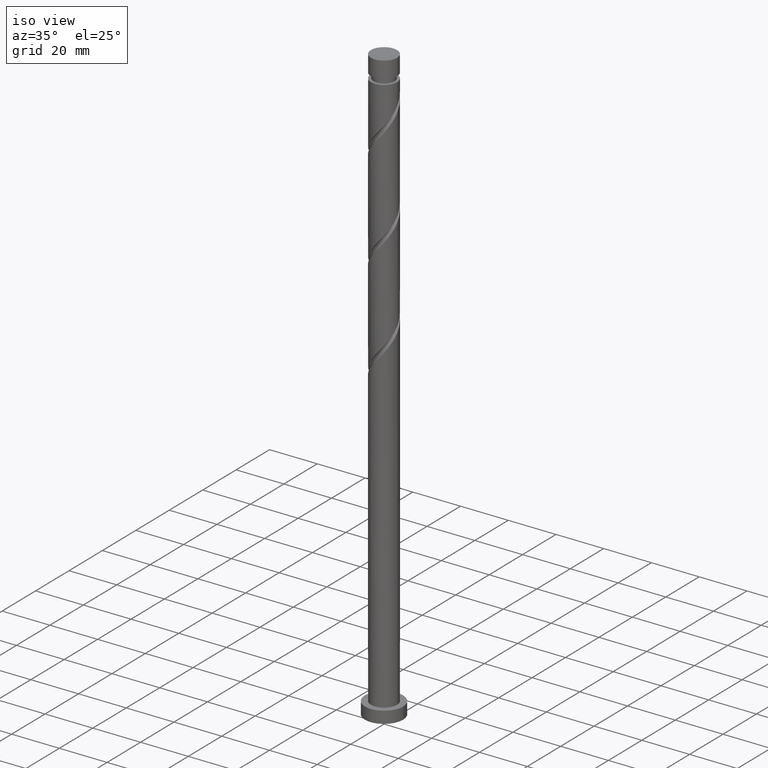
[diagram: clean part render]
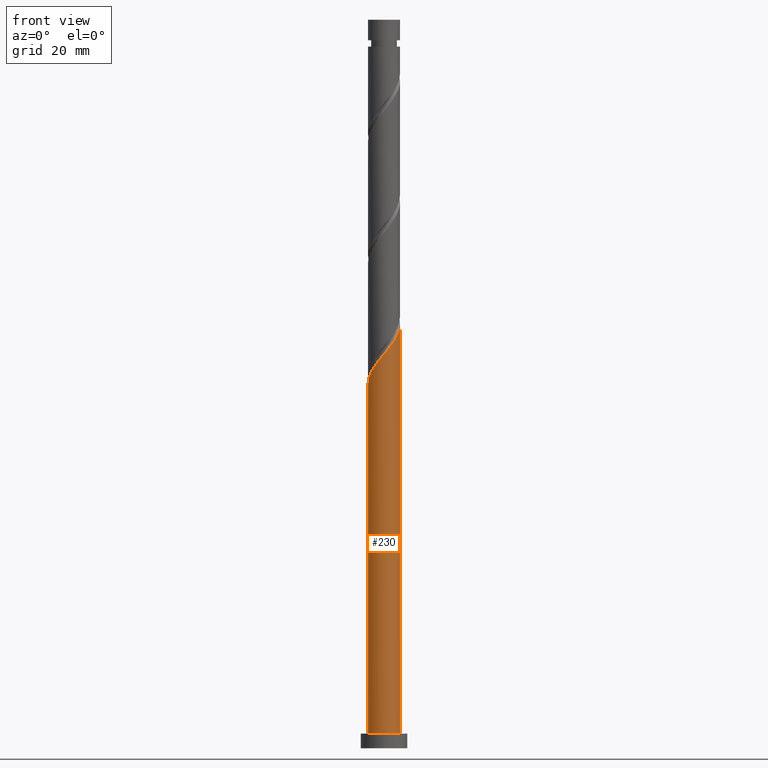
[diagram: tour spotlight — one face highlighted and labeled with its STEP entity id]
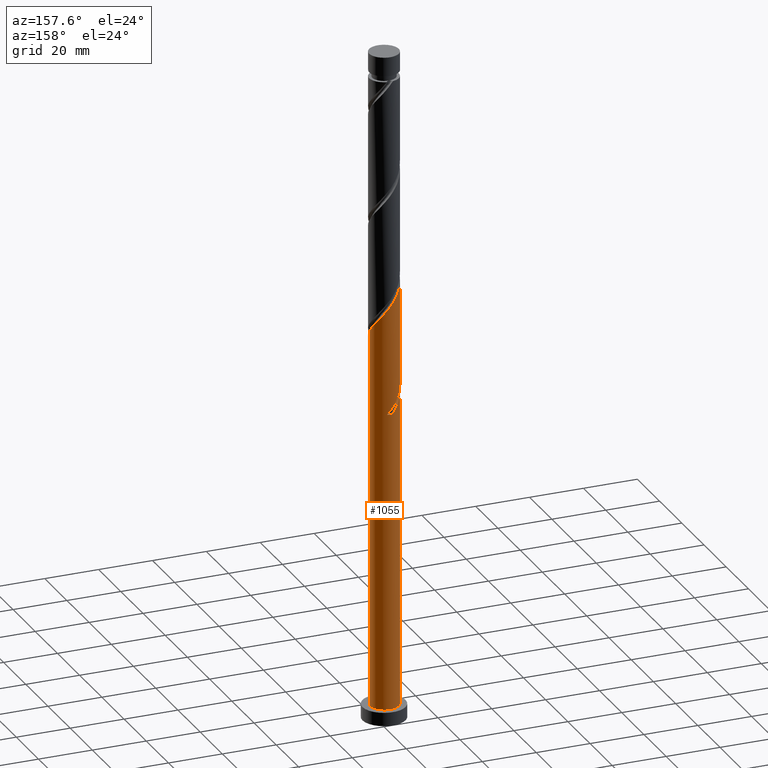
[diagram: tour spotlight — one face highlighted and labeled with its STEP entity id]
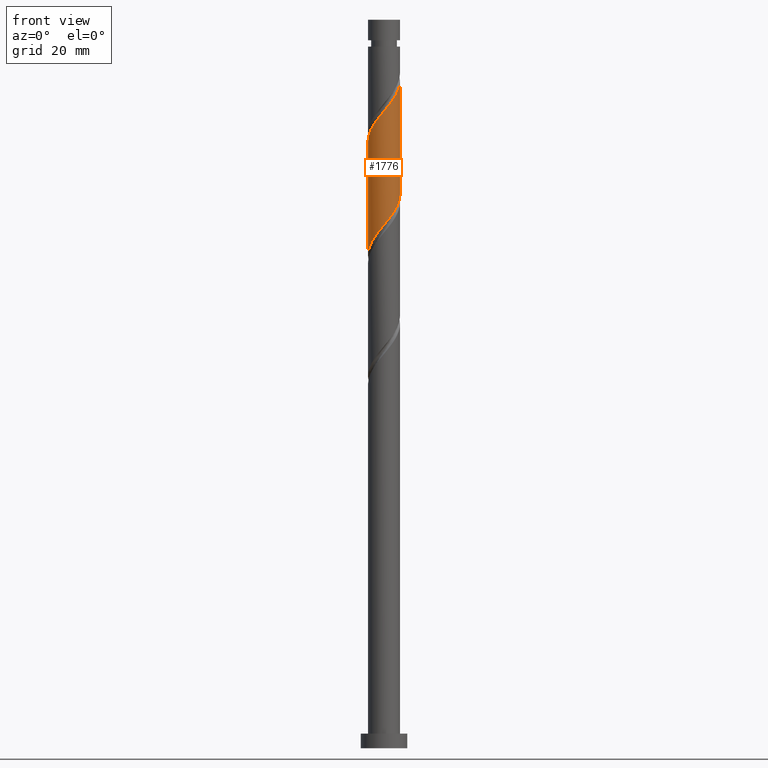
[diagram: tour spotlight — one face highlighted and labeled with its STEP entity id]
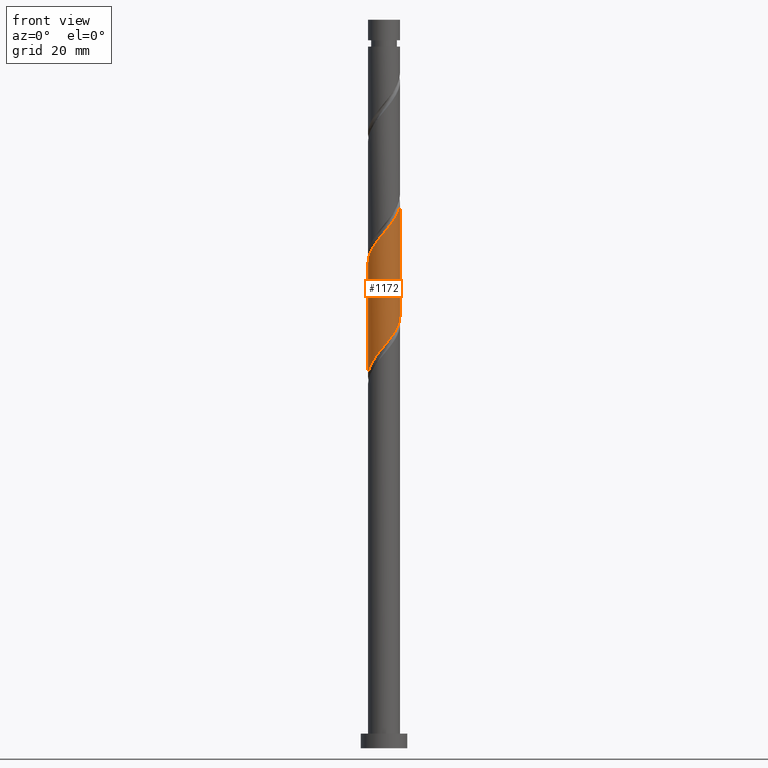
[diagram: tour spotlight — one face highlighted and labeled with its STEP entity id]
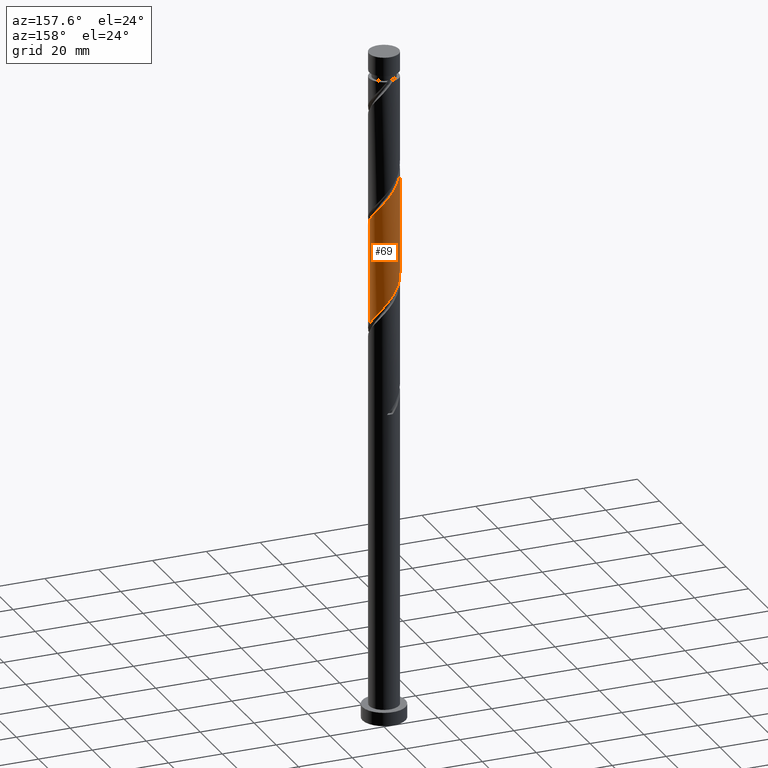
[diagram: tour spotlight — one face highlighted and labeled with its STEP entity id]
A machine part: a face-by-face anatomy tour. The part has 21 B-rep faces; the first image is the clean iso view, then the 5 largest visible faces are spotlighted one at a time (largest first), each with its STEP entity span.

Face 1 — front view, entity #230. In plain terms, the highlighted cylindrical surface (edge-blend (fillet) strip) has radius 5.5 mm, axis along (-0, -0, -1).
Definition (entity closure, byte-faithful):
#52 = CARTESIAN_POINT ( 'NONE',  ( -5.482626562209559573, -0.4368134376988127565, 125.4066184522399681 ) ) ;
#68 = CARTESIAN_POINT ( 'NONE',  ( -0.2272290289595070012, -5.495304083342267276, 135.0220030676246097 ) ) ;
#77 = CARTESIAN_POINT ( 'NONE',  ( -4.651627399556062414, -2.934682697618155256, 128.6117466573682009 ) ) ;
#150 = CYLINDRICAL_SURFACE ( 'NONE', #1026, 5.500000000000000000 ) ;
#183 = CARTESIAN_POINT ( 'NONE',  ( 5.057622052273533342, -2.161124516624742142, 143.0348235804450781 ) ) ;
#230 = ADVANCED_FACE ( 'NONE', ( #992 ), #150, .T. ) ;
#295 = CIRCLE ( 'NONE', #1399, 5.500000000000000000 ) ;
#316 = EDGE_CURVE ( 'NONE', #588, #352, #468, .T. ) ;
#318 = CARTESIAN_POINT ( 'NONE',  ( 2.956236993735469110, -4.685792099705358815, 139.0284133240348581 ) ) ;
#327 = CARTESIAN_POINT ( 'NONE',  ( -5.500000000000005329, -0.2187522168522292587, 125.1441495432631399 ) ) ;
#352 = VERTEX_POINT ( 'NONE', #1162 ) ;
#402 = VECTOR ( 'NONE', #1483, 1000.000000000000000 ) ;
#468 = LINE ( 'NONE', #906, #402 ) ;
#584 = EDGE_CURVE ( 'NONE', #352, #1328, #295, .T. ) ;
#588 = VERTEX_POINT ( 'NONE', #1747 ) ;
#592 = DIRECTION ( 'NONE',  ( 1.000000000000000000, 0.000000000000000000, 0.000000000000000000 ) ) ;
#600 = DIRECTION ( 'NONE',  ( -1.000000000000000000, 0.000000000000000000, 0.000000000000000000 ) ) ;
#618 = CARTESIAN_POINT ( 'NONE',  ( -1.535738513517082904, -5.281241067978283077, 133.4194389650605501 ) ) ;
#623 = EDGE_LOOP ( 'NONE', ( #786, #1721, #1598, #1694 ) ) ;
#628 = CARTESIAN_POINT ( 'NONE',  ( 3.473977281114748017, -4.263974888563327958, 139.8296953753169021 ) ) ;
#653 = VECTOR ( 'NONE', #836, 1000.000000000000000 ) ;
#757 = CARTESIAN_POINT ( 'NONE',  ( -0.8944797491683107449, -5.467713484000335633, 134.2207210163425941 ) ) ;
#766 = CARTESIAN_POINT ( 'NONE',  ( -3.332995637836974279, -4.425734384590989556, 131.0155928112143613 ) ) ;
#782 = CARTESIAN_POINT ( 'NONE',  ( -5.429587808306036045, -1.102524828149342717, 126.2079005035219978 ) ) ;
#786 = ORIENTED_EDGE ( 'NONE', *, *, #1551, .F. ) ;
#818 = LINE ( 'NONE', #978, #653 ) ;
#836 = DIRECTION ( 'NONE',  ( -0.000000000000000000, -0.000000000000000000, -1.000000000000000000 ) ) ;
#885 = CARTESIAN_POINT ( 'NONE',  ( -2.176997277865855285, -5.094768651956234962, 132.6181569137784777 ) ) ;
#889 = DIRECTION ( 'NONE',  ( -0.000000000000000000, -0.000000000000000000, -1.000000000000000000 ) ) ;
#894 = CARTESIAN_POINT ( 'NONE',  ( 1.094486180817283882, -5.390000000000005898, 136.6245671701887261 ) ) ;
#904 = CARTESIAN_POINT ( 'NONE',  ( 5.427847696592720261, -0.8879579847003837845, 144.6373876830092513 ) ) ;
#906 = CARTESIAN_POINT ( 'NONE',  ( -5.500000000000000000, 0.000000000000000000, 250.0000000000000000 ) ) ;
#912 = CARTESIAN_POINT ( 'NONE',  ( -5.218775100567474290, -1.736198850851196518, 127.0091825548040845 ) ) ;
#921 = CARTESIAN_POINT ( 'NONE',  ( -4.295292406283213182, -3.499492521683258861, 129.4130287086503017 ) ) ;
#978 = CARTESIAN_POINT ( 'NONE',  ( 5.500000000000000000, 6.735557395310442023E-16, 250.0000000000000000 ) ) ;
#992 = FACE_OUTER_BOUND ( 'NONE', #623, .T. ) ;
#1025 = CARTESIAN_POINT ( 'NONE',  ( 2.352593832060369650, -4.971448708510584957, 138.2271312727528141 ) ) ;
#1026 = AXIS2_PLACEMENT_3D ( 'NONE', #1745, #889, #600 ) ;
#1045 = CARTESIAN_POINT ( 'NONE',  ( -5.007962392828913423, -2.369872873553052983, 127.8104646060861143 ) ) ;
#1162 = CARTESIAN_POINT ( 'NONE',  ( -5.500000000000000000, 0.000000000000000000, 5.000000000000000000 ) ) ;
#1181 = CARTESIAN_POINT ( 'NONE',  ( 4.393465797984365651, -3.308694347010867176, 141.4322594778810185 ) ) ;
#1190 = CARTESIAN_POINT ( 'NONE',  ( 0.4400216912492971311, -5.522894682684198031, 135.8232851189066821 ) ) ;
#1198 = CARTESIAN_POINT ( 'NONE',  ( -3.814144022060092620, -3.962613453137125319, 130.2143107599322889 ) ) ;
#1228 =( BOUNDED_CURVE ( )  B_SPLINE_CURVE ( 2, ( #1331, #327, #52, #782, #912, #1045, #77, #921, #1198, #766, #1617, #885, #618, #757, #68, #1190, #894, #1467, #1025, #318, #628, #1499, #1181, #1458, #183, #1355, #904, #1595, #1633 ),
 .UNSPECIFIED., .F., .T. ) 
 B_SPLINE_CURVE_WITH_KNOTS ( ( 3, 2, 2, 2, 2, 2, 2, 2, 2, 2, 2, 2, 2, 2, 3 ),
 ( 0.05452716259738336901, 0.05769230769230770939, 0.06730769230769229061, 0.07692307692307687184, 0.08653846153846156408, 0.09615384615384614531, 0.1057692307692307265, 0.1153846153846154188, 0.1250000000000000000, 0.1346153846153845812, 0.1442307692307692735, 0.1538461538461538547, 0.1634615384615384359, 0.1730769230769231282, 0.1795271625973833829 ),
 .UNSPECIFIED. ) 
 CURVE ( )  GEOMETRIC_REPRESENTATION_ITEM ( )  RATIONAL_B_SPLINE_CURVE ( ( 0.9061636035682822943, 0.9069090390690708325, 0.9090909090909273793, 0.9024626128164308092, 0.9090909090909273793, 0.9024626128164308092, 0.9090909090909273793, 0.9024626128164308092, 0.9090909090909273793, 0.9024626128164308092, 0.9090909090909273793, 0.9024626128164308092, 0.9090909090909273793, 0.9024626128164308092, 0.9090909090909273793, 0.9024626128164308092, 0.9090909090909273793, 0.9024626128164308092, 0.9090909090909273793, 0.9024626128164308092, 0.9090909090909273793, 0.9024626128164308092, 0.9090909090909273793, 0.9024626128164308092, 0.9090909090909273793, 0.9024626128164308092, 0.9090909090909273793, 0.9046444828382873560, 0.9061636035682820722 ) ) 
 REPRESENTATION_ITEM ( '' )  );
#1328 = VERTEX_POINT ( 'NONE', #1836 ) ;
#1331 = CARTESIAN_POINT ( 'NONE',  ( -5.500000000000005329, -2.811716444257900512E-15, 124.8799786276301660 ) ) ;
#1355 = CARTESIAN_POINT ( 'NONE',  ( 5.320030077072358310, -1.547018016649052807, 143.8361056317271220 ) ) ;
#1399 = AXIS2_PLACEMENT_3D ( 'NONE', #1731, #1586, #592 ) ;
#1458 = CARTESIAN_POINT ( 'NONE',  ( 4.795214027474707486, -2.775231016600435030, 142.2335415291630056 ) ) ;
#1467 = CARTESIAN_POINT ( 'NONE',  ( 1.748950670385268413, -5.257105317315811988, 137.4258492214707132 ) ) ;
#1483 = DIRECTION ( 'NONE',  ( -0.000000000000000000, -0.000000000000000000, -1.000000000000000000 ) ) ;
#1499 = CARTESIAN_POINT ( 'NONE',  ( 3.991717568494025148, -3.842157677421299766, 140.6309774265989745 ) ) ;
#1551 = EDGE_CURVE ( 'NONE', #1824, #1328, #818, .T. ) ;
#1586 = DIRECTION ( 'NONE',  ( 0.000000000000000000, 0.000000000000000000, 1.000000000000000000 ) ) ;
#1595 = CARTESIAN_POINT ( 'NONE',  ( 5.500000000000006217, -0.4469104119537462561, 145.1736112236151541 ) ) ;
#1598 = ORIENTED_EDGE ( 'NONE', *, *, #316, .T. ) ;
#1617 = CARTESIAN_POINT ( 'NONE',  ( -2.754996457851414782, -4.760251518273612703, 131.8168748624964053 ) ) ;
#1633 = CARTESIAN_POINT ( 'NONE',  ( 5.500000000000005329, 2.034007640526991549E-15, 145.7133119609635230 ) ) ;
#1679 = CARTESIAN_POINT ( 'NONE',  ( 5.500000000000005329, 2.034007640526991549E-15, 145.7133119609635230 ) ) ;
#1692 = EDGE_CURVE ( 'NONE', #588, #1824, #1228, .T. ) ;
#1694 = ORIENTED_EDGE ( 'NONE', *, *, #584, .T. ) ;
#1721 = ORIENTED_EDGE ( 'NONE', *, *, #1692, .F. ) ;
#1731 = CARTESIAN_POINT ( 'NONE',  ( 0.000000000000000000, 0.000000000000000000, 5.000000000000000000 ) ) ;
#1745 = CARTESIAN_POINT ( 'NONE',  ( 0.000000000000000000, 0.000000000000000000, 250.0000000000000000 ) ) ;
#1747 = CARTESIAN_POINT ( 'NONE',  ( -5.500000000000005329, -2.811716444257900118E-15, 124.8799786276301660 ) ) ;
#1824 = VERTEX_POINT ( 'NONE', #1679 ) ;
#1836 = CARTESIAN_POINT ( 'NONE',  ( 5.500000000000000000, 6.735557395310442023E-16, 5.000000000000000000 ) ) ;

Face 2 — auxiliary view, entity #1055. In plain terms, the highlighted cylindrical surface (edge-blend (fillet) strip) has radius 5.5 mm, axis along (-0, -0, -1).
Definition (entity closure, byte-faithful):
#81 = VERTEX_POINT ( 'NONE', #1351 ) ;
#95 = CARTESIAN_POINT ( 'NONE',  ( -4.295292406283205189, 3.499492521683255752, 123.0027722983938503 ) ) ;
#121 = DIRECTION ( 'NONE',  ( -0.000000000000000000, -0.000000000000000000, -1.000000000000000000 ) ) ;
#122 = CARTESIAN_POINT ( 'NONE',  ( 5.429587808306036045, 1.102524828149341829, 147.0412338368553833 ) ) ;
#144 = EDGE_LOOP ( 'NONE', ( #1032, #1523, #220, #645, #1206, #1048, #1755, #1548 ) ) ;
#169 = CIRCLE ( 'NONE', #1211, 5.500000000000000000 ) ;
#218 = CARTESIAN_POINT ( 'NONE',  ( -5.500000000000000000, 4.845724084784922038E-15, 127.5358223794139150 ) ) ;
#220 = ORIENTED_EDGE ( 'NONE', *, *, #262, .T. ) ;
#228 = CARTESIAN_POINT ( 'NONE',  ( 4.651627399556062414, 2.934682697618155700, 149.4450799907015153 ) ) ;
#254 = CARTESIAN_POINT ( 'NONE',  ( 0.000000000000000000, 0.000000000000000000, 250.0000000000000000 ) ) ;
#262 = EDGE_CURVE ( 'NONE', #1328, #352, #169, .T. ) ;
#283 = EDGE_CURVE ( 'NONE', #1465, #1122, #770, .T. ) ;
#305 = CARTESIAN_POINT ( 'NONE',  ( -4.795214027474709262, 2.775231016600434142, 121.4002081958297481 ) ) ;
#314 = CARTESIAN_POINT ( 'NONE',  ( -5.499999999999999112, 4.845724084784922038E-15, 127.5358223794139150 ) ) ;
#316 = EDGE_CURVE ( 'NONE', #588, #352, #468, .T. ) ;
#321 = CARTESIAN_POINT ( 'NONE',  ( 0.000000000000000000, 0.000000000000000000, 115.7912338368554117 ) ) ;
#352 = VERTEX_POINT ( 'NONE', #1162 ) ;
#368 = CARTESIAN_POINT ( 'NONE',  ( -1.094486180817283216, 5.390000000000005898, 115.7912338368553833 ) ) ;
#370 = CARTESIAN_POINT ( 'NONE',  ( -5.482626562209551579, 0.4368134376988147549, 127.0091825548040845 ) ) ;
#373 = CARTESIAN_POINT ( 'NONE',  ( 2.176997277865856617, 5.094768651956234962, 153.4514902471117637 ) ) ;
#382 = CARTESIAN_POINT ( 'NONE',  ( -5.320030077072360086, 1.547018016649049255, 164.6694389650605217 ) ) ;
#402 = VECTOR ( 'NONE', #1483, 1000.000000000000000 ) ;
#422 = CARTESIAN_POINT ( 'NONE',  ( 0.4400216912492997956, 5.522894682684190926, 116.5925158881374415 ) ) ;
#439 = CARTESIAN_POINT ( 'NONE',  ( -4.393465797984366539, 3.308694347010867176, 120.5989261445477041 ) ) ;
#453 = CARTESIAN_POINT ( 'NONE',  ( -5.500000000000000000, 0.000000000000000000, 250.0000000000000000 ) ) ;
#468 = LINE ( 'NONE', #906, #402 ) ;
#503 = CARTESIAN_POINT ( 'NONE',  ( 3.332995637836976055, 4.425734384590986892, 151.8489261445477325 ) ) ;
#542 = CARTESIAN_POINT ( 'NONE',  ( 1.535738513517085790, 5.281241067978283077, 154.2527722983937792 ) ) ;
#582 =( BOUNDED_CURVE ( )  B_SPLINE_CURVE ( 2, ( #965, #1002, #1012, #1729, #1300, #1453, #439, #305, #873, #1444, #743, #1308, #1737 ),
 .UNSPECIFIED., .F., .T. ) 
 B_SPLINE_CURVE_WITH_KNOTS ( ( 3, 2, 2, 2, 2, 2, 3 ),
 ( 0.000000000000000000, 0.009615384615384581224, 0.01923076923076927347, 0.02884615384615385469, 0.03846153846153843592, 0.04807692307692312816, 0.05452716259738337595 ),
 .UNSPECIFIED. ) 
 CURVE ( )  GEOMETRIC_REPRESENTATION_ITEM ( )  RATIONAL_B_SPLINE_CURVE ( ( 0.9090909090909273793, 0.9024626128164308092, 0.9090909090909273793, 0.9024626128164308092, 0.9090909090909273793, 0.9024626128164308092, 0.9090909090909273793, 0.9024626128164308092, 0.9090909090909273793, 0.9024626128164308092, 0.9090909090909273793, 0.9046444828382873560, 0.9061636035682822943 ) ) 
 REPRESENTATION_ITEM ( '' )  );
#588 = VERTEX_POINT ( 'NONE', #1747 ) ;
#590 = AXIS2_PLACEMENT_3D ( 'NONE', #254, #121, #1016 ) ;
#645 = ORIENTED_EDGE ( 'NONE', *, *, #316, .F. ) ;
#653 = VECTOR ( 'NONE', #836, 1000.000000000000000 ) ;
#661 = CARTESIAN_POINT ( 'NONE',  ( -3.814144022060085959, 3.962613453137121766, 122.2014902471118063 ) ) ;
#663 = CARTESIAN_POINT ( 'NONE',  ( 0.2272290289595099988, 5.495304083342267276, 155.8553364009579525 ) ) ;
#671 = CARTESIAN_POINT ( 'NONE',  ( 4.295292406283214071, 3.499492521683256641, 150.2463620419836445 ) ) ;
#676 = CARTESIAN_POINT ( 'NONE',  ( 1.094486180817285215, 5.389999999999998792, 115.7912338368553975 ) ) ;
#732 =( BOUNDED_CURVE ( )  B_SPLINE_CURVE ( 2, ( #1094, #816, #1084, #122, #1383, #1216, #228, #671, #1783, #503, #1115, #373, #542, #1663, #663, #832, #1790, #1107, #1226, #951, #1374, #1073, #1686, #823, #1253, #382, #798, #939, #1817 ),
 .UNSPECIFIED., .F., .T. ) 
 B_SPLINE_CURVE_WITH_KNOTS ( ( 3, 2, 2, 2, 2, 2, 2, 2, 2, 2, 2, 2, 2, 2, 3 ),
 ( 0.1795271625973833829, 0.1826923076923077094, 0.1923076923076922906, 0.2019230769230768718, 0.2115384615384615641, 0.2211538461538461453, 0.2307692307692307265, 0.2403846153846154188, 0.2500000000000000000, 0.2596153846153845812, 0.2692307692307692735, 0.2788461538461538547, 0.2884615384615384359, 0.2980769230769231282, 0.3045271625973833274 ),
 .UNSPECIFIED. ) 
 CURVE ( )  GEOMETRIC_REPRESENTATION_ITEM ( )  RATIONAL_B_SPLINE_CURVE ( ( 0.9061636035682820722, 0.9069090390690708325, 0.9090909090909273793, 0.9024626128164308092, 0.9090909090909273793, 0.9024626128164308092, 0.9090909090909273793, 0.9024626128164308092, 0.9090909090909273793, 0.9024626128164308092, 0.9090909090909273793, 0.9024626128164308092, 0.9090909090909273793, 0.9024626128164308092, 0.9090909090909273793, 0.9024626128164308092, 0.9090909090909273793, 0.9024626128164308092, 0.9090909090909273793, 0.9024626128164308092, 0.9090909090909273793, 0.9024626128164308092, 0.9090909090909273793, 0.9024626128164308092, 0.9090909090909273793, 0.9024626128164308092, 0.9090909090909273793, 0.9046444828382873560, 0.9061636035682820722 ) ) 
 REPRESENTATION_ITEM ( '' )  );
#743 = CARTESIAN_POINT ( 'NONE',  ( -5.427847696592720261, 0.8879579847003832294, 123.8040543496758801 ) ) ;
#763 = DIRECTION ( 'NONE',  ( 0.000000000000000000, 0.000000000000000000, 1.000000000000000000 ) ) ;
#770 = CIRCLE ( 'NONE', #1801, 5.500000000000000000 ) ;
#790 = EDGE_CURVE ( 'NONE', #1465, #588, #582, .T. ) ;
#798 = CARTESIAN_POINT ( 'NONE',  ( -5.427847696592720261, 0.8879579847003832294, 165.4707210163425941 ) ) ;
#816 = CARTESIAN_POINT ( 'NONE',  ( 5.500000000000005329, 0.2187522168522291754, 145.9774828765964401 ) ) ;
#818 = LINE ( 'NONE', #978, #653 ) ;
#823 = CARTESIAN_POINT ( 'NONE',  ( -4.795214027474709262, 2.775231016600434142, 163.0668748624963484 ) ) ;
#832 = CARTESIAN_POINT ( 'NONE',  ( -0.4400216912492964649, 5.522894682684198031, 156.6566184522399965 ) ) ;
#836 = DIRECTION ( 'NONE',  ( -0.000000000000000000, -0.000000000000000000, -1.000000000000000000 ) ) ;
#870 = CARTESIAN_POINT ( 'NONE',  ( 1.094486180817285215, 5.389999999999998792, 115.7912338368553833 ) ) ;
#873 = CARTESIAN_POINT ( 'NONE',  ( -5.057622052273533342, 2.161124516624742142, 122.2014902471117921 ) ) ;
#906 = CARTESIAN_POINT ( 'NONE',  ( -5.500000000000000000, 0.000000000000000000, 250.0000000000000000 ) ) ;
#937 = CARTESIAN_POINT ( 'NONE',  ( -5.007962392828906317, 2.369872873553050763, 124.6053364009579525 ) ) ;
#939 = CARTESIAN_POINT ( 'NONE',  ( -5.500000000000005329, 0.4469104119537500863, 166.0069445569484969 ) ) ;
#951 = CARTESIAN_POINT ( 'NONE',  ( -2.956236993735470886, 4.685792099705358815, 159.8617466573681725 ) ) ;
#962 = DIRECTION ( 'NONE',  ( 0.000000000000000000, -0.000000000000000000, -1.000000000000000000 ) ) ;
#965 = CARTESIAN_POINT ( 'NONE',  ( -1.094486180817283216, 5.390000000000005898, 115.7912338368553833 ) ) ;
#973 = EDGE_CURVE ( 'NONE', #1705, #1122, #1412, .T. ) ;
#978 = CARTESIAN_POINT ( 'NONE',  ( 5.500000000000000000, 6.735557395310442023E-16, 250.0000000000000000 ) ) ;
#1002 = CARTESIAN_POINT ( 'NONE',  ( -1.748950670385269524, 5.257105317315811988, 116.5925158881374699 ) ) ;
#1012 = CARTESIAN_POINT ( 'NONE',  ( -2.352593832060371426, 4.971448708510584957, 117.3937979394194855 ) ) ;
#1016 = DIRECTION ( 'NONE',  ( -1.000000000000000000, 0.000000000000000000, 0.000000000000000000 ) ) ;
#1030 = CARTESIAN_POINT ( 'NONE',  ( 0.000000000000000000, 0.000000000000000000, 5.000000000000000000 ) ) ;
#1032 = ORIENTED_EDGE ( 'NONE', *, *, #1777, .F. ) ;
#1048 = ORIENTED_EDGE ( 'NONE', *, *, #283, .T. ) ;
#1055 = ADVANCED_FACE ( 'NONE', ( #1275 ), #1489, .T. ) ;
#1073 = CARTESIAN_POINT ( 'NONE',  ( -3.991717568494025148, 3.842157677421299766, 161.4643107599323173 ) ) ;
#1079 = CARTESIAN_POINT ( 'NONE',  ( -5.499999999999999112, 0.2187522168522360311, 127.2716514637809695 ) ) ;
#1084 = CARTESIAN_POINT ( 'NONE',  ( 5.482626562209559573, 0.4368134376988108691, 146.2399517855733109 ) ) ;
#1091 = CARTESIAN_POINT ( 'NONE',  ( -2.754996457851408120, 4.760251518273608262, 120.5989261445477183 ) ) ;
#1094 = CARTESIAN_POINT ( 'NONE',  ( 5.500000000000005329, 2.034007640526991549E-15, 145.7133119609635230 ) ) ;
#1101 = CARTESIAN_POINT ( 'NONE',  ( -5.218775100567468073, 1.736198850851197184, 125.4066184522399965 ) ) ;
#1107 = CARTESIAN_POINT ( 'NONE',  ( -1.748950670385269524, 5.257105317315811988, 158.2591825548040845 ) ) ;
#1115 = CARTESIAN_POINT ( 'NONE',  ( 2.754996457851415226, 4.760251518273611815, 152.6502081958297197 ) ) ;
#1122 = VERTEX_POINT ( 'NONE', #870 ) ;
#1162 = CARTESIAN_POINT ( 'NONE',  ( -5.500000000000000000, 0.000000000000000000, 5.000000000000000000 ) ) ;
#1206 = ORIENTED_EDGE ( 'NONE', *, *, #790, .F. ) ;
#1211 = AXIS2_PLACEMENT_3D ( 'NONE', #1030, #763, #1326 ) ;
#1216 = CARTESIAN_POINT ( 'NONE',  ( 5.007962392828913423, 2.369872873553051207, 148.6437979394195281 ) ) ;
#1226 = CARTESIAN_POINT ( 'NONE',  ( -2.352593832060371426, 4.971448708510584957, 159.0604646060861285 ) ) ;
#1234 = CARTESIAN_POINT ( 'NONE',  ( -3.332995637836967617, 4.425734384590987780, 121.4002081958297481 ) ) ;
#1253 = CARTESIAN_POINT ( 'NONE',  ( -5.057622052273533342, 2.161124516624742142, 163.8681569137784209 ) ) ;
#1275 = FACE_OUTER_BOUND ( 'NONE', #144, .T. ) ;
#1280 = CARTESIAN_POINT ( 'NONE',  ( -0.2272290289595038371, 5.495304083342259283, 117.3937979394194855 ) ) ;
#1300 = CARTESIAN_POINT ( 'NONE',  ( -3.473977281114748017, 4.263974888563327958, 118.9963620419835877 ) ) ;
#1308 = CARTESIAN_POINT ( 'NONE',  ( -5.500000000000006217, 0.4469104119537471997, 124.3402778902818682 ) ) ;
#1326 = DIRECTION ( 'NONE',  ( 1.000000000000000000, 0.000000000000000000, 0.000000000000000000 ) ) ;
#1328 = VERTEX_POINT ( 'NONE', #1836 ) ;
#1351 = CARTESIAN_POINT ( 'NONE',  ( -5.500000000000005329, -2.811716444257900118E-15, 166.5466452942968942 ) ) ;
#1371 = CARTESIAN_POINT ( 'NONE',  ( -4.651627399556055309, 2.934682697618153924, 123.8040543496758801 ) ) ;
#1374 = CARTESIAN_POINT ( 'NONE',  ( -3.473977281114748017, 4.263974888563327958, 160.6630287086502733 ) ) ;
#1383 = CARTESIAN_POINT ( 'NONE',  ( 5.218775100567474290, 1.736198850851194075, 147.8425158881374273 ) ) ;
#1396 = CARTESIAN_POINT ( 'NONE',  ( -1.535738513517079129, 5.281241067978278636, 118.9963620419835735 ) ) ;
#1405 = CARTESIAN_POINT ( 'NONE',  ( -0.8944797491683068591, 5.467713484000326751, 118.1950799907015295 ) ) ;
#1412 =( BOUNDED_CURVE ( )  B_SPLINE_CURVE ( 2, ( #314, #1079, #370, #1650, #1101, #937, #1371, #95, #661, #1234, #1091, #1674, #1396, #1405, #1280, #422, #676 ),
 .UNSPECIFIED., .F., .T. ) 
 B_SPLINE_CURVE_WITH_KNOTS ( ( 3, 2, 2, 2, 2, 2, 2, 2, 3 ),
 ( 0.9295271625973834384, 0.9326923076923077094, 0.9423076923076922906, 0.9519230769230768718, 0.9615384615384615641, 0.9711538461538461453, 0.9807692307692307265, 0.9903846153846154188, 1.000000000000000000 ),
 .UNSPECIFIED. ) 
 CURVE ( )  GEOMETRIC_REPRESENTATION_ITEM ( )  RATIONAL_B_SPLINE_CURVE ( ( 0.9061636035682765211, 0.9069090390690650594, 0.9090909090909216062, 0.9024626128164251471, 0.9090909090909216062, 0.9024626128164251471, 0.9090909090909216062, 0.9024626128164251471, 0.9090909090909216062, 0.9024626128164251471, 0.9090909090909216062, 0.9024626128164251471, 0.9090909090909216062, 0.9024626128164251471, 0.9090909090909216062, 0.9024626128164251471, 0.9090909090909216062 ) ) 
 REPRESENTATION_ITEM ( '' )  );
#1420 = DIRECTION ( 'NONE',  ( -1.000000000000000000, 0.000000000000000000, 0.000000000000000000 ) ) ;
#1444 = CARTESIAN_POINT ( 'NONE',  ( -5.320030077072360086, 1.547018016649049255, 123.0027722983938361 ) ) ;
#1453 = CARTESIAN_POINT ( 'NONE',  ( -3.991717568494025148, 3.842157677421299766, 119.7976440932656601 ) ) ;
#1465 = VERTEX_POINT ( 'NONE', #368 ) ;
#1483 = DIRECTION ( 'NONE',  ( -0.000000000000000000, -0.000000000000000000, -1.000000000000000000 ) ) ;
#1489 = CYLINDRICAL_SURFACE ( 'NONE', #590, 5.500000000000000000 ) ;
#1523 = ORIENTED_EDGE ( 'NONE', *, *, #1551, .T. ) ;
#1548 = ORIENTED_EDGE ( 'NONE', *, *, #1666, .F. ) ;
#1551 = EDGE_CURVE ( 'NONE', #1824, #1328, #818, .T. ) ;
#1604 = DIRECTION ( 'NONE',  ( -0.000000000000000000, -0.000000000000000000, -1.000000000000000000 ) ) ;
#1650 = CARTESIAN_POINT ( 'NONE',  ( -5.429587808306028940, 1.102524828149342717, 126.2079005035220405 ) ) ;
#1663 = CARTESIAN_POINT ( 'NONE',  ( 0.8944797491683117441, 5.467713484000335633, 155.0540543496758801 ) ) ;
#1666 = EDGE_CURVE ( 'NONE', #81, #1705, #1741, .T. ) ;
#1671 = VECTOR ( 'NONE', #1604, 1000.000000000000000 ) ;
#1674 = CARTESIAN_POINT ( 'NONE',  ( -2.176997277865850844, 5.094768651956226968, 119.7976440932656601 ) ) ;
#1679 = CARTESIAN_POINT ( 'NONE',  ( 5.500000000000005329, 2.034007640526991549E-15, 145.7133119609635230 ) ) ;
#1686 = CARTESIAN_POINT ( 'NONE',  ( -4.393465797984366539, 3.308694347010867176, 162.2655928112143329 ) ) ;
#1705 = VERTEX_POINT ( 'NONE', #218 ) ;
#1729 = CARTESIAN_POINT ( 'NONE',  ( -2.956236993735470886, 4.685792099705358815, 118.1950799907015153 ) ) ;
#1737 = CARTESIAN_POINT ( 'NONE',  ( -5.500000000000005329, -2.811716444257900512E-15, 124.8799786276301660 ) ) ;
#1741 = LINE ( 'NONE', #453, #1671 ) ;
#1747 = CARTESIAN_POINT ( 'NONE',  ( -5.500000000000005329, -2.811716444257900118E-15, 124.8799786276301660 ) ) ;
#1755 = ORIENTED_EDGE ( 'NONE', *, *, #973, .F. ) ;
#1777 = EDGE_CURVE ( 'NONE', #1824, #81, #732, .T. ) ;
#1783 = CARTESIAN_POINT ( 'NONE',  ( 3.814144022060093508, 3.962613453137125319, 151.0476440932656033 ) ) ;
#1790 = CARTESIAN_POINT ( 'NONE',  ( -1.094486180817283438, 5.390000000000005898, 157.4579005035220689 ) ) ;
#1801 = AXIS2_PLACEMENT_3D ( 'NONE', #321, #962, #1420 ) ;
#1817 = CARTESIAN_POINT ( 'NONE',  ( -5.500000000000005329, -2.811716444257900118E-15, 166.5466452942968942 ) ) ;
#1824 = VERTEX_POINT ( 'NONE', #1679 ) ;
#1836 = CARTESIAN_POINT ( 'NONE',  ( 5.500000000000000000, 6.735557395310442023E-16, 5.000000000000000000 ) ) ;

Face 3 — front view, entity #1776. In plain terms, the highlighted cylindrical surface (edge-blend (fillet) strip) has radius 5.5 mm, axis along (-0, -0, -1).
Definition (entity closure, byte-faithful):
#23 = CARTESIAN_POINT ( 'NONE',  ( 0.4400216912492971311, -5.522894682684198031, 219.1566184522399681 ) ) ;
#35 = AXIS2_PLACEMENT_3D ( 'NONE', #963, #255, #238 ) ;
#92 = EDGE_CURVE ( 'NONE', #202, #268, #933, .T. ) ;
#106 = CARTESIAN_POINT ( 'NONE',  ( -3.991717568494021595, -3.842157677421293549, 174.2848235804451349 ) ) ;
#114 = CARTESIAN_POINT ( 'NONE',  ( -4.393465797984362986, -3.308694347010860071, 173.4835415291630056 ) ) ;
#125 = CARTESIAN_POINT ( 'NONE',  ( -5.320030077072353869, -1.547018016649046368, 171.0796953753169305 ) ) ;
#143 = CARTESIAN_POINT ( 'NONE',  ( -0.8944797491683107449, -5.467713484000335633, 217.5540543496759085 ) ) ;
#155 = CARTESIAN_POINT ( 'NONE',  ( -2.754996457851414782, -4.760251518273612703, 215.1502081958296912 ) ) ;
#189 = VERTEX_POINT ( 'NONE', #1082 ) ;
#202 = VERTEX_POINT ( 'NONE', #1262 ) ;
#205 = EDGE_CURVE ( 'NONE', #1194, #202, #1103, .T. ) ;
#237 = CARTESIAN_POINT ( 'NONE',  ( -5.500000000000005329, -0.2187522168522264554, 208.4774828765964401 ) ) ;
#238 = DIRECTION ( 'NONE',  ( -1.000000000000000000, 0.000000000000000000, 0.000000000000000000 ) ) ;
#248 = CARTESIAN_POINT ( 'NONE',  ( -0.4400216912493009613, -5.522894682684190926, 179.0925158881374841 ) ) ;
#255 = DIRECTION ( 'NONE',  ( -0.000000000000000000, -0.000000000000000000, -1.000000000000000000 ) ) ;
#265 = CARTESIAN_POINT ( 'NONE',  ( -2.352593832060370538, -4.971448708510576964, 176.6886697342913521 ) ) ;
#268 = VERTEX_POINT ( 'NONE', #1599 ) ;
#275 = CARTESIAN_POINT ( 'NONE',  ( 4.295292406283203412, -3.499492521683257529, 185.5027722983938929 ) ) ;
#282 = CARTESIAN_POINT ( 'NONE',  ( -5.427847696592713156, -0.8879579847003793436, 170.2784133240348581 ) ) ;
#294 = CARTESIAN_POINT ( 'NONE',  ( 3.991717568494025148, -3.842157677421299766, 223.9643107599322889 ) ) ;
#299 = CARTESIAN_POINT ( 'NONE',  ( -2.176997277865855285, -5.094768651956234962, 215.9514902471117637 ) ) ;
#315 = CARTESIAN_POINT ( 'NONE',  ( 1.748950670385268413, -5.257105317315811988, 220.7591825548040845 ) ) ;
#359 = CARTESIAN_POINT ( 'NONE',  ( 5.500000000000000000, 6.735557395310442023E-16, 250.0000000000000000 ) ) ;
#372 = CARTESIAN_POINT ( 'NONE',  ( -4.651627399556062414, -2.934682697618155256, 211.9450799907015153 ) ) ;
#378 = ORIENTED_EDGE ( 'NONE', *, *, #205, .F. ) ;
#400 = FACE_OUTER_BOUND ( 'NONE', #1723, .T. ) ;
#413 = CARTESIAN_POINT ( 'NONE',  ( 4.795214027474707486, -2.775231016600435030, 225.5668748624964053 ) ) ;
#415 = ORIENTED_EDGE ( 'NONE', *, *, #761, .T. ) ;
#419 = CARTESIAN_POINT ( 'NONE',  ( -5.500000000000000000, -0.4469104119537476438, 169.7421897834289268 ) ) ;
#423 = CARTESIAN_POINT ( 'NONE',  ( 5.320030077072358310, -1.547018016649052807, 227.1694389650605217 ) ) ;
#425 = CARTESIAN_POINT ( 'NONE',  ( 1.094486180817283882, -5.390000000000005898, 219.9579005035220405 ) ) ;
#476 = LINE ( 'NONE', #1044, #684 ) ;
#481 = ORIENTED_EDGE ( 'NONE', *, *, #1584, .F. ) ;
#525 = CARTESIAN_POINT ( 'NONE',  ( 4.651627399556055309, -2.934682697618154812, 186.3040543496758801 ) ) ;
#540 = CARTESIAN_POINT ( 'NONE',  ( -3.814144022060092620, -3.962613453137125319, 213.5476440932657169 ) ) ;
#657 = CARTESIAN_POINT ( 'NONE',  ( -1.094486180817284771, -5.389999999999998792, 178.2912338368553833 ) ) ;
#665 = CARTESIAN_POINT ( 'NONE',  ( 5.482626562209551579, -0.4368134376988178080, 189.5091825548041129 ) ) ;
#680 = CARTESIAN_POINT ( 'NONE',  ( -5.500000000000006217, 2.333126411192725311E-15, 208.2133119609635230 ) ) ;
#684 = VECTOR ( 'NONE', #1457, 1000.000000000000000 ) ;
#709 = CARTESIAN_POINT ( 'NONE',  ( 5.427847696592720261, -0.8879579847003837845, 227.9707210163425373 ) ) ;
#742 = CARTESIAN_POINT ( 'NONE',  ( 5.057622052273533342, -2.161124516624742142, 226.3681569137784209 ) ) ;
#745 = CARTESIAN_POINT ( 'NONE',  ( -0.2272290289595070012, -5.495304083342267276, 218.3553364009579525 ) ) ;
#761 = EDGE_CURVE ( 'NONE', #1194, #189, #476, .T. ) ;
#809 = CARTESIAN_POINT ( 'NONE',  ( 5.007962392828906317, -2.369872873553050763, 187.1053364009579525 ) ) ;
#826 = CARTESIAN_POINT ( 'NONE',  ( 0.8944797491683053048, -5.467713484000326751, 180.6950799907015437 ) ) ;
#831 = CARTESIAN_POINT ( 'NONE',  ( -5.218775100567474290, -1.736198850851196518, 210.3425158881374273 ) ) ;
#855 = CARTESIAN_POINT ( 'NONE',  ( -5.500000000000000000, 4.845724084784922038E-15, 169.2024890460805864 ) ) ;
#875 = CARTESIAN_POINT ( 'NONE',  ( -1.535738513517082904, -5.281241067978283077, 216.7527722983938077 ) ) ;
#933 = LINE ( 'NONE', #359, #1480 ) ;
#963 = CARTESIAN_POINT ( 'NONE',  ( 0.000000000000000000, 0.000000000000000000, 250.0000000000000000 ) ) ;
#981 = CARTESIAN_POINT ( 'NONE',  ( 4.393465797984365651, -3.308694347010867176, 224.7655928112143329 ) ) ;
#1001 = CARTESIAN_POINT ( 'NONE',  ( 3.473977281114748017, -4.263974888563327958, 223.1630287086502165 ) ) ;
#1044 = CARTESIAN_POINT ( 'NONE',  ( -5.500000000000000000, 0.000000000000000000, 250.0000000000000000 ) ) ;
#1051 = ORIENTED_EDGE ( 'NONE', *, *, #92, .F. ) ;
#1082 = CARTESIAN_POINT ( 'NONE',  ( -5.500000000000000000, 4.845724084784922038E-15, 169.2024890460805864 ) ) ;
#1087 = CARTESIAN_POINT ( 'NONE',  ( 5.499999999999999112, 8.255678070374312555E-15, 190.0358223794139860 ) ) ;
#1096 = CARTESIAN_POINT ( 'NONE',  ( 3.332995637836965397, -4.425734384590987780, 183.9002081958297481 ) ) ;
#1103 =( BOUNDED_CURVE ( )  B_SPLINE_CURVE ( 2, ( #680, #237, #1252, #1106, #831, #1382, #372, #1816, #540, #1114, #155, #299, #875, #143, #745, #23, #425, #315, #1310, #1701, #1001, #294, #981, #413, #742, #423, #709, #1435, #1141 ),
 .UNSPECIFIED., .F., .T. ) 
 B_SPLINE_CURVE_WITH_KNOTS ( ( 3, 2, 2, 2, 2, 2, 2, 2, 2, 2, 2, 2, 2, 2, 3 ),
 ( 0.5545271625973833274, 0.5576923076923077094, 0.5673076923076922906, 0.5769230769230768718, 0.5865384615384615641, 0.5961538461538461453, 0.6057692307692308376, 0.6153846153846154188, 0.6250000000000000000, 0.6346153846153845812, 0.6442307692307691624, 0.6538461538461538547, 0.6634615384615384359, 0.6730769230769231282, 0.6795271625973831053 ),
 .UNSPECIFIED. ) 
 CURVE ( )  GEOMETRIC_REPRESENTATION_ITEM ( )  RATIONAL_B_SPLINE_CURVE ( ( 0.9061636035682820722, 0.9069090390690708325, 0.9090909090909273793, 0.9024626128164308092, 0.9090909090909273793, 0.9024626128164308092, 0.9090909090909273793, 0.9024626128164308092, 0.9090909090909273793, 0.9024626128164308092, 0.9090909090909273793, 0.9024626128164308092, 0.9090909090909273793, 0.9024626128164308092, 0.9090909090909273793, 0.9024626128164308092, 0.9090909090909273793, 0.9024626128164308092, 0.9090909090909273793, 0.9024626128164308092, 0.9090909090909273793, 0.9024626128164308092, 0.9090909090909273793, 0.9024626128164308092, 0.9090909090909273793, 0.9024626128164308092, 0.9090909090909273793, 0.9046444828382875780, 0.9061636035682820722 ) ) 
 REPRESENTATION_ITEM ( '' )  );
#1106 = CARTESIAN_POINT ( 'NONE',  ( -5.429587808306036045, -1.102524828149342717, 209.5412338368553833 ) ) ;
#1114 = CARTESIAN_POINT ( 'NONE',  ( -3.332995637836974279, -4.425734384590989556, 214.3489261445477041 ) ) ;
#1118 = CARTESIAN_POINT ( 'NONE',  ( -3.473977281114745352, -4.263974888563321741, 175.0861056317271505 ) ) ;
#1128 = CARTESIAN_POINT ( 'NONE',  ( 2.754996457851407676, -4.760251518273607374, 183.0989261445477041 ) ) ;
#1141 = CARTESIAN_POINT ( 'NONE',  ( 5.500000000000006217, -3.051011460790486732E-15, 229.0466452942968374 ) ) ;
#1194 = VERTEX_POINT ( 'NONE', #1479 ) ;
#1229 = CARTESIAN_POINT ( 'NONE',  ( -1.748950670385270412, -5.257105317315805770, 177.4899517855732825 ) ) ;
#1238 = CARTESIAN_POINT ( 'NONE',  ( 5.218775100567468073, -1.736198850851198960, 187.9066184522399965 ) ) ;
#1252 = CARTESIAN_POINT ( 'NONE',  ( -5.482626562209559573, -0.4368134376988127565, 208.7399517855733109 ) ) ;
#1257 = CARTESIAN_POINT ( 'NONE',  ( -5.057622052273526236, -2.161124516624736369, 171.8809774265989745 ) ) ;
#1262 = CARTESIAN_POINT ( 'NONE',  ( 5.500000000000006217, -3.051011460790486732E-15, 229.0466452942968374 ) ) ;
#1266 = CARTESIAN_POINT ( 'NONE',  ( 1.535738513517078685, -5.281241067978278636, 181.4963620419836161 ) ) ;
#1310 = CARTESIAN_POINT ( 'NONE',  ( 2.352593832060369650, -4.971448708510584957, 221.5604646060861569 ) ) ;
#1382 = CARTESIAN_POINT ( 'NONE',  ( -5.007962392828913423, -2.369872873553052983, 211.1437979394194713 ) ) ;
#1385 = CARTESIAN_POINT ( 'NONE',  ( -2.956236993735469998, -4.685792099705351710, 175.8873876830092229 ) ) ;
#1393 = CARTESIAN_POINT ( 'NONE',  ( 5.500000000000000000, -0.2187522168522156862, 189.7716514637809837 ) ) ;
#1402 = CARTESIAN_POINT ( 'NONE',  ( -4.795214027474704821, -2.775231016600427481, 172.6822594778809901 ) ) ;
#1435 = CARTESIAN_POINT ( 'NONE',  ( 5.500000000000004441, -0.4469104119537654629, 228.5069445569484401 ) ) ;
#1457 = DIRECTION ( 'NONE',  ( -0.000000000000000000, -0.000000000000000000, -1.000000000000000000 ) ) ;
#1479 = CARTESIAN_POINT ( 'NONE',  ( -5.500000000000006217, 2.333126411192725311E-15, 208.2133119609635230 ) ) ;
#1480 = VECTOR ( 'NONE', #1647, 1000.000000000000000 ) ;
#1530 = CARTESIAN_POINT ( 'NONE',  ( 0.2272290289595019219, -5.495304083342259283, 179.8937979394194713 ) ) ;
#1536 = CYLINDRICAL_SURFACE ( 'NONE', #35, 5.500000000000000000 ) ;
#1538 = CARTESIAN_POINT ( 'NONE',  ( 3.814144022060085959, -3.962613453137121766, 184.7014902471118205 ) ) ;
#1545 = CARTESIAN_POINT ( 'NONE',  ( 2.176997277865849068, -5.094768651956227856, 182.2976440932656317 ) ) ;
#1554 = CARTESIAN_POINT ( 'NONE',  ( 5.429587808306028940, -1.102524828149343383, 188.7079005035220121 ) ) ;
#1584 = EDGE_CURVE ( 'NONE', #268, #189, #1685, .T. ) ;
#1599 = CARTESIAN_POINT ( 'NONE',  ( 5.499999999999999112, 8.255678070374312555E-15, 190.0358223794139860 ) ) ;
#1647 = DIRECTION ( 'NONE',  ( -0.000000000000000000, -0.000000000000000000, -1.000000000000000000 ) ) ;
#1685 =( BOUNDED_CURVE ( )  B_SPLINE_CURVE ( 2, ( #1087, #1393, #665, #1554, #1238, #809, #525, #275, #1538, #1096, #1128, #1545, #1266, #826, #1530, #248, #657, #1229, #265, #1385, #1118, #106, #114, #1402, #1257, #125, #282, #419, #855 ),
 .UNSPECIFIED., .F., .T. ) 
 B_SPLINE_CURVE_WITH_KNOTS ( ( 3, 2, 2, 2, 2, 2, 2, 2, 2, 2, 2, 2, 2, 2, 3 ),
 ( 0.5545271625973831053, 0.5576923076923077094, 0.5673076923076922906, 0.5769230769230768718, 0.5865384615384615641, 0.5961538461538461453, 0.6057692307692307265, 0.6153846153846154188, 0.6250000000000000000, 0.6346153846153845812, 0.6442307692307692735, 0.6538461538461538547, 0.6634615384615384359, 0.6730769230769231282, 0.6795271625973833274 ),
 .UNSPECIFIED. ) 
 CURVE ( )  GEOMETRIC_REPRESENTATION_ITEM ( )  RATIONAL_B_SPLINE_CURVE ( ( 0.9061636035682762991, 0.9069090390690649484, 0.9090909090909216062, 0.9024626128164251471, 0.9090909090909216062, 0.9024626128164251471, 0.9090909090909216062, 0.9024626128164251471, 0.9090909090909216062, 0.9024626128164251471, 0.9090909090909216062, 0.9024626128164251471, 0.9090909090909216062, 0.9024626128164251471, 0.9090909090909216062, 0.9024626128164251471, 0.9090909090909216062, 0.9024626128164251471, 0.9090909090909216062, 0.9024626128164251471, 0.9090909090909216062, 0.9024626128164251471, 0.9090909090909216062, 0.9024626128164251471, 0.9090909090909216062, 0.9024626128164251471, 0.9090909090909216062, 0.9046444828382816938, 0.9061636035682764101 ) ) 
 REPRESENTATION_ITEM ( '' )  );
#1701 = CARTESIAN_POINT ( 'NONE',  ( 2.956236993735469110, -4.685792099705358815, 222.3617466573682009 ) ) ;
#1723 = EDGE_LOOP ( 'NONE', ( #1051, #378, #415, #481 ) ) ;
#1776 = ADVANCED_FACE ( 'NONE', ( #400 ), #1536, .T. ) ;
#1816 = CARTESIAN_POINT ( 'NONE',  ( -4.295292406283213182, -3.499492521683258861, 212.7463620419836161 ) ) ;

Face 4 — front view, entity #1172. In plain terms, the highlighted cylindrical surface (edge-blend (fillet) strip) has radius 5.5 mm, axis along (-0, -0, -1).
Definition (entity closure, byte-faithful):
#14 = CARTESIAN_POINT ( 'NONE',  ( -5.500000000000001776, -0.4469104119537401498, 128.0755231167622128 ) ) ;
#27 = CARTESIAN_POINT ( 'NONE',  ( -5.218775100567474290, -1.736198850851196518, 168.6758492214707417 ) ) ;
#28 = CARTESIAN_POINT ( 'NONE',  ( -1.748950670385270412, -5.257105317315805770, 135.8232851189066537 ) ) ;
#56 = EDGE_LOOP ( 'NONE', ( #614, #168, #1029, #1792 ) ) ;
#62 = CARTESIAN_POINT ( 'NONE',  ( 1.748950670385268413, -5.257105317315811988, 179.0925158881373989 ) ) ;
#79 = CARTESIAN_POINT ( 'NONE',  ( 4.795214027474707486, -2.775231016600435030, 183.9002081958297481 ) ) ;
#81 = VERTEX_POINT ( 'NONE', #1351 ) ;
#88 = CARTESIAN_POINT ( 'NONE',  ( 5.500000000000005329, 2.034007640526991549E-15, 187.3799786276301802 ) ) ;
#130 = VERTEX_POINT ( 'NONE', #233 ) ;
#135 = CARTESIAN_POINT ( 'NONE',  ( -0.8944797491683107449, -5.467713484000335633, 175.8873876830092797 ) ) ;
#168 = ORIENTED_EDGE ( 'NONE', *, *, #1155, .F. ) ;
#184 = CARTESIAN_POINT ( 'NONE',  ( 5.429587808306028940, -1.102524828149343383, 147.0412338368553549 ) ) ;
#201 = CARTESIAN_POINT ( 'NONE',  ( 5.500000000000000000, 6.735557395310442023E-16, 250.0000000000000000 ) ) ;
#211 = CARTESIAN_POINT ( 'NONE',  ( 5.500000000000006217, -0.4469104119537424813, 186.8402778902817829 ) ) ;
#213 = LINE ( 'NONE', #201, #1126 ) ;
#218 = CARTESIAN_POINT ( 'NONE',  ( -5.500000000000000000, 4.845724084784922038E-15, 127.5358223794139150 ) ) ;
#221 = CARTESIAN_POINT ( 'NONE',  ( 3.473977281114748017, -4.263974888563327958, 181.4963620419836161 ) ) ;
#233 = CARTESIAN_POINT ( 'NONE',  ( 5.500000000000005329, 2.034007640526991549E-15, 187.3799786276301802 ) ) ;
#309 = CARTESIAN_POINT ( 'NONE',  ( -4.393465797984362986, -3.308694347010860071, 131.8168748624964053 ) ) ;
#328 = CARTESIAN_POINT ( 'NONE',  ( 3.332995637836965397, -4.425734384590987780, 142.2335415291630341 ) ) ;
#334 =( BOUNDED_CURVE ( )  B_SPLINE_CURVE ( 2, ( #1459, #1767, #1758, #184, #758, #606, #487, #1182, #1036, #328, #895, #1468, #1589, #1573, #1563, #856, #1441, #28, #1277, #562, #585, #1288, #309, #878, #719, #1148, #1718, #14, #713 ),
 .UNSPECIFIED., .F., .T. ) 
 B_SPLINE_CURVE_WITH_KNOTS ( ( 3, 2, 2, 2, 2, 2, 2, 2, 2, 2, 2, 2, 2, 2, 3 ),
 ( 0.8045271625973831053, 0.8076923076923077094, 0.8173076923076922906, 0.8269230769230768718, 0.8365384615384615641, 0.8461538461538461453, 0.8557692307692307265, 0.8653846153846154188, 0.8750000000000000000, 0.8846153846153845812, 0.8942307692307692735, 0.9038461538461538547, 0.9134615384615384359, 0.9230769230769231282, 0.9295271625973834384 ),
 .UNSPECIFIED. ) 
 CURVE ( )  GEOMETRIC_REPRESENTATION_ITEM ( )  RATIONAL_B_SPLINE_CURVE ( ( 0.9061636035682762991, 0.9069090390690649484, 0.9090909090909216062, 0.9024626128164251471, 0.9090909090909216062, 0.9024626128164251471, 0.9090909090909216062, 0.9024626128164251471, 0.9090909090909216062, 0.9024626128164251471, 0.9090909090909216062, 0.9024626128164251471, 0.9090909090909216062, 0.9024626128164251471, 0.9090909090909216062, 0.9024626128164251471, 0.9090909090909216062, 0.9024626128164251471, 0.9090909090909216062, 0.9024626128164251471, 0.9090909090909216062, 0.9024626128164251471, 0.9090909090909216062, 0.9024626128164251471, 0.9090909090909216062, 0.9024626128164251471, 0.9090909090909216062, 0.9046444828382815828, 0.9061636035682765211 ) ) 
 REPRESENTATION_ITEM ( '' )  );
#348 = CARTESIAN_POINT ( 'NONE',  ( 5.057622052273533342, -2.161124516624742142, 184.7014902471117637 ) ) ;
#363 = EDGE_CURVE ( 'NONE', #130, #1124, #213, .T. ) ;
#443 = CARTESIAN_POINT ( 'NONE',  ( -5.482626562209559573, -0.4368134376988127565, 167.0732851189066537 ) ) ;
#453 = CARTESIAN_POINT ( 'NONE',  ( -5.500000000000000000, 0.000000000000000000, 250.0000000000000000 ) ) ;
#487 = CARTESIAN_POINT ( 'NONE',  ( 4.651627399556055309, -2.934682697618154812, 144.6373876830091945 ) ) ;
#489 = CARTESIAN_POINT ( 'NONE',  ( 3.991717568494025148, -3.842157677421299766, 182.2976440932656601 ) ) ;
#515 = FACE_OUTER_BOUND ( 'NONE', #56, .T. ) ;
#516 = CARTESIAN_POINT ( 'NONE',  ( -4.651627399556062414, -2.934682697618155256, 170.2784133240348581 ) ) ;
#562 = CARTESIAN_POINT ( 'NONE',  ( -2.956236993735469998, -4.685792099705351710, 134.2207210163426225 ) ) ;
#585 = CARTESIAN_POINT ( 'NONE',  ( -3.473977281114745352, -4.263974888563321741, 133.4194389650605501 ) ) ;
#589 =( BOUNDED_CURVE ( )  B_SPLINE_CURVE ( 2, ( #1430, #739, #443, #1304, #27, #1165, #516, #930, #1819, #694, #683, #1665, #1117, #135, #704, #1645, #1500, #62, #1521, #1201, #221, #489, #1357, #79, #348, #1492, #931, #211, #88 ),
 .UNSPECIFIED., .F., .T. ) 
 B_SPLINE_CURVE_WITH_KNOTS ( ( 3, 2, 2, 2, 2, 2, 2, 2, 2, 2, 2, 2, 2, 2, 3 ),
 ( 0.3045271625973833274, 0.3076923076923077094, 0.3173076923076922906, 0.3269230769230768718, 0.3365384615384615641, 0.3461538461538461453, 0.3557692307692307265, 0.3653846153846154188, 0.3750000000000000000, 0.3846153846153845812, 0.3942307692307692735, 0.4038461538461538547, 0.4134615384615384359, 0.4230769230769231282, 0.4295271625973834384 ),
 .UNSPECIFIED. ) 
 CURVE ( )  GEOMETRIC_REPRESENTATION_ITEM ( )  RATIONAL_B_SPLINE_CURVE ( ( 0.9061636035682820722, 0.9069090390690708325, 0.9090909090909273793, 0.9024626128164308092, 0.9090909090909273793, 0.9024626128164308092, 0.9090909090909273793, 0.9024626128164308092, 0.9090909090909273793, 0.9024626128164308092, 0.9090909090909273793, 0.9024626128164308092, 0.9090909090909273793, 0.9024626128164308092, 0.9090909090909273793, 0.9024626128164308092, 0.9090909090909273793, 0.9024626128164308092, 0.9090909090909273793, 0.9024626128164308092, 0.9090909090909273793, 0.9024626128164308092, 0.9090909090909273793, 0.9024626128164308092, 0.9090909090909273793, 0.9024626128164308092, 0.9090909090909273793, 0.9046444828382873560, 0.9061636035682822943 ) ) 
 REPRESENTATION_ITEM ( '' )  );
#606 = CARTESIAN_POINT ( 'NONE',  ( 5.007962392828906317, -2.369872873553050763, 145.4386697342913237 ) ) ;
#614 = ORIENTED_EDGE ( 'NONE', *, *, #363, .F. ) ;
#629 = DIRECTION ( 'NONE',  ( -0.000000000000000000, -0.000000000000000000, -1.000000000000000000 ) ) ;
#683 = CARTESIAN_POINT ( 'NONE',  ( -2.754996457851414782, -4.760251518273612703, 173.4835415291631193 ) ) ;
#694 = CARTESIAN_POINT ( 'NONE',  ( -3.332995637836974279, -4.425734384590989556, 172.6822594778809901 ) ) ;
#704 = CARTESIAN_POINT ( 'NONE',  ( -0.2272290289595070012, -5.495304083342267276, 176.6886697342912669 ) ) ;
#713 = CARTESIAN_POINT ( 'NONE',  ( -5.499999999999999112, 4.845724084784922038E-15, 127.5358223794139150 ) ) ;
#717 = CARTESIAN_POINT ( 'NONE',  ( 5.499999999999999112, 8.255678070374312555E-15, 148.3691557127473004 ) ) ;
#719 = CARTESIAN_POINT ( 'NONE',  ( -5.057622052273526236, -2.161124516624736369, 130.2143107599323173 ) ) ;
#739 = CARTESIAN_POINT ( 'NONE',  ( -5.500000000000005329, -0.2187522168522264554, 166.8108162099297545 ) ) ;
#758 = CARTESIAN_POINT ( 'NONE',  ( 5.218775100567468073, -1.736198850851198960, 146.2399517855733393 ) ) ;
#856 = CARTESIAN_POINT ( 'NONE',  ( -0.4400216912493009613, -5.522894682684190926, 137.4258492214707417 ) ) ;
#878 = CARTESIAN_POINT ( 'NONE',  ( -4.795214027474704821, -2.775231016600427481, 131.0155928112143613 ) ) ;
#895 = CARTESIAN_POINT ( 'NONE',  ( 2.754996457851407676, -4.760251518273607374, 141.4322594778810469 ) ) ;
#930 = CARTESIAN_POINT ( 'NONE',  ( -4.295292406283213182, -3.499492521683258861, 171.0796953753169021 ) ) ;
#931 = CARTESIAN_POINT ( 'NONE',  ( 5.427847696592720261, -0.8879579847003837845, 186.3040543496758232 ) ) ;
#941 = CARTESIAN_POINT ( 'NONE',  ( 0.000000000000000000, 0.000000000000000000, 250.0000000000000000 ) ) ;
#1029 = ORIENTED_EDGE ( 'NONE', *, *, #1666, .T. ) ;
#1036 = CARTESIAN_POINT ( 'NONE',  ( 3.814144022060085959, -3.962613453137121766, 143.0348235804451349 ) ) ;
#1065 = DIRECTION ( 'NONE',  ( -0.000000000000000000, -0.000000000000000000, -1.000000000000000000 ) ) ;
#1117 = CARTESIAN_POINT ( 'NONE',  ( -1.535738513517082904, -5.281241067978283077, 175.0861056317270936 ) ) ;
#1124 = VERTEX_POINT ( 'NONE', #717 ) ;
#1126 = VECTOR ( 'NONE', #1065, 1000.000000000000000 ) ;
#1148 = CARTESIAN_POINT ( 'NONE',  ( -5.320030077072353869, -1.547018016649046368, 129.4130287086502733 ) ) ;
#1155 = EDGE_CURVE ( 'NONE', #81, #130, #589, .T. ) ;
#1165 = CARTESIAN_POINT ( 'NONE',  ( -5.007962392828913423, -2.369872873553052983, 169.4771312727527857 ) ) ;
#1172 = ADVANCED_FACE ( 'NONE', ( #515 ), #1654, .T. ) ;
#1182 = CARTESIAN_POINT ( 'NONE',  ( 4.295292406283203412, -3.499492521683257529, 143.8361056317271505 ) ) ;
#1201 = CARTESIAN_POINT ( 'NONE',  ( 2.956236993735469110, -4.685792099705358815, 180.6950799907015153 ) ) ;
#1220 = EDGE_CURVE ( 'NONE', #1124, #1705, #334, .T. ) ;
#1223 = AXIS2_PLACEMENT_3D ( 'NONE', #941, #629, #1625 ) ;
#1277 = CARTESIAN_POINT ( 'NONE',  ( -2.352593832060370538, -4.971448708510576964, 135.0220030676246097 ) ) ;
#1288 = CARTESIAN_POINT ( 'NONE',  ( -3.991717568494021595, -3.842157677421293549, 132.6181569137784777 ) ) ;
#1304 = CARTESIAN_POINT ( 'NONE',  ( -5.429587808306036045, -1.102524828149342717, 167.8745671701886693 ) ) ;
#1351 = CARTESIAN_POINT ( 'NONE',  ( -5.500000000000005329, -2.811716444257900118E-15, 166.5466452942968942 ) ) ;
#1357 = CARTESIAN_POINT ( 'NONE',  ( 4.393465797984365651, -3.308694347010867176, 183.0989261445477041 ) ) ;
#1430 = CARTESIAN_POINT ( 'NONE',  ( -5.500000000000005329, -2.811716444257900118E-15, 166.5466452942968942 ) ) ;
#1441 = CARTESIAN_POINT ( 'NONE',  ( -1.094486180817284771, -5.389999999999998792, 136.6245671701887261 ) ) ;
#1459 = CARTESIAN_POINT ( 'NONE',  ( 5.499999999999999112, 8.255678070374312555E-15, 148.3691557127473288 ) ) ;
#1468 = CARTESIAN_POINT ( 'NONE',  ( 2.176997277865849068, -5.094768651956227856, 140.6309774265989745 ) ) ;
#1492 = CARTESIAN_POINT ( 'NONE',  ( 5.320030077072358310, -1.547018016649052807, 185.5027722983938361 ) ) ;
#1500 = CARTESIAN_POINT ( 'NONE',  ( 1.094486180817283882, -5.390000000000005898, 178.2912338368553549 ) ) ;
#1521 = CARTESIAN_POINT ( 'NONE',  ( 2.352593832060369650, -4.971448708510584957, 179.8937979394194429 ) ) ;
#1563 = CARTESIAN_POINT ( 'NONE',  ( 0.2272290289595019219, -5.495304083342259283, 138.2271312727528425 ) ) ;
#1573 = CARTESIAN_POINT ( 'NONE',  ( 0.8944797491683053048, -5.467713484000326751, 139.0284133240349149 ) ) ;
#1589 = CARTESIAN_POINT ( 'NONE',  ( 1.535738513517078685, -5.281241067978278636, 139.8296953753169305 ) ) ;
#1604 = DIRECTION ( 'NONE',  ( -0.000000000000000000, -0.000000000000000000, -1.000000000000000000 ) ) ;
#1625 = DIRECTION ( 'NONE',  ( -1.000000000000000000, 0.000000000000000000, 0.000000000000000000 ) ) ;
#1645 = CARTESIAN_POINT ( 'NONE',  ( 0.4400216912492971311, -5.522894682684198031, 177.4899517855733393 ) ) ;
#1654 = CYLINDRICAL_SURFACE ( 'NONE', #1223, 5.500000000000000000 ) ;
#1665 = CARTESIAN_POINT ( 'NONE',  ( -2.176997277865855285, -5.094768651956234962, 174.2848235804451349 ) ) ;
#1666 = EDGE_CURVE ( 'NONE', #81, #1705, #1741, .T. ) ;
#1671 = VECTOR ( 'NONE', #1604, 1000.000000000000000 ) ;
#1705 = VERTEX_POINT ( 'NONE', #218 ) ;
#1718 = CARTESIAN_POINT ( 'NONE',  ( -5.427847696592713156, -0.8879579847003793436, 128.6117466573682009 ) ) ;
#1741 = LINE ( 'NONE', #453, #1671 ) ;
#1758 = CARTESIAN_POINT ( 'NONE',  ( 5.482626562209551579, -0.4368134376988178080, 147.8425158881374273 ) ) ;
#1767 = CARTESIAN_POINT ( 'NONE',  ( 5.500000000000000000, -0.2187522168522156862, 148.1049847971143265 ) ) ;
#1792 = ORIENTED_EDGE ( 'NONE', *, *, #1220, .F. ) ;
#1819 = CARTESIAN_POINT ( 'NONE',  ( -3.814144022060092620, -3.962613453137125319, 171.8809774265989461 ) ) ;

Face 5 — auxiliary view, entity #69. In plain terms, the highlighted cylindrical surface (edge-blend (fillet) strip) has radius 5.5 mm, axis along (-0, -0, -1).
Definition (entity closure, byte-faithful):
#7 = CARTESIAN_POINT ( 'NONE',  ( 0.2272290289595099988, 5.495304083342267276, 197.5220030676246381 ) ) ;
#45 = CARTESIAN_POINT ( 'NONE',  ( -5.499999999999999112, 0.2187522168522283428, 168.9383181304476693 ) ) ;
#61 = CARTESIAN_POINT ( 'NONE',  ( -2.176997277865850844, 5.094768651956226968, 161.4643107599323457 ) ) ;
#69 = ADVANCED_FACE ( 'NONE', ( #1076 ), #1098, .T. ) ;
#73 =( BOUNDED_CURVE ( )  B_SPLINE_CURVE ( 2, ( #642, #45, #486, #477, #338, #605, #1478, #1750, #636, #199, #774, #61, #464, #1054, #1624, #346, #1490, #208, #1348, #1209, #1774, #497, #1063, #1400, #85, #246, #112, #1798, #104 ),
 .UNSPECIFIED., .F., .T. ) 
 B_SPLINE_CURVE_WITH_KNOTS ( ( 3, 2, 2, 2, 2, 2, 2, 2, 2, 2, 2, 2, 2, 2, 3 ),
 ( 0.6795271625973833274, 0.6826923076923077094, 0.6923076923076922906, 0.7019230769230768718, 0.7115384615384615641, 0.7211538461538461453, 0.7307692307692307265, 0.7403846153846154188, 0.7500000000000000000, 0.7596153846153845812, 0.7692307692307692735, 0.7788461538461538547, 0.7884615384615384359, 0.7980769230769231282, 0.8045271625973831053 ),
 .UNSPECIFIED. ) 
 CURVE ( )  GEOMETRIC_REPRESENTATION_ITEM ( )  RATIONAL_B_SPLINE_CURVE ( ( 0.9061636035682764101, 0.9069090390690650594, 0.9090909090909216062, 0.9024626128164251471, 0.9090909090909216062, 0.9024626128164251471, 0.9090909090909216062, 0.9024626128164251471, 0.9090909090909216062, 0.9024626128164251471, 0.9090909090909216062, 0.9024626128164251471, 0.9090909090909216062, 0.9024626128164251471, 0.9090909090909216062, 0.9024626128164251471, 0.9090909090909216062, 0.9024626128164251471, 0.9090909090909216062, 0.9024626128164251471, 0.9090909090909216062, 0.9024626128164251471, 0.9090909090909216062, 0.9024626128164251471, 0.9090909090909216062, 0.9024626128164251471, 0.9090909090909216062, 0.9046444828382818049, 0.9061636035682762991 ) ) 
 REPRESENTATION_ITEM ( '' )  );
#85 = CARTESIAN_POINT ( 'NONE',  ( 5.057622052273528013, 2.161124516624735481, 151.0476440932656601 ) ) ;
#104 = CARTESIAN_POINT ( 'NONE',  ( 5.499999999999999112, 8.255678070374312555E-15, 148.3691557127473288 ) ) ;
#112 = CARTESIAN_POINT ( 'NONE',  ( 5.427847696592713156, 0.8879579847003798987, 149.4450799907015437 ) ) ;
#130 = VERTEX_POINT ( 'NONE', #233 ) ;
#189 = VERTEX_POINT ( 'NONE', #1082 ) ;
#199 = CARTESIAN_POINT ( 'NONE',  ( -3.332995637836967617, 4.425734384590987780, 163.0668748624963769 ) ) ;
#201 = CARTESIAN_POINT ( 'NONE',  ( 5.500000000000000000, 6.735557395310442023E-16, 250.0000000000000000 ) ) ;
#208 = CARTESIAN_POINT ( 'NONE',  ( 1.748950670385271078, 5.257105317315805770, 156.6566184522399396 ) ) ;
#213 = LINE ( 'NONE', #201, #1126 ) ;
#233 = CARTESIAN_POINT ( 'NONE',  ( 5.500000000000005329, 2.034007640526991549E-15, 187.3799786276301802 ) ) ;
#246 = CARTESIAN_POINT ( 'NONE',  ( 5.320030077072353869, 1.547018016649043259, 150.2463620419835877 ) ) ;
#307 = CARTESIAN_POINT ( 'NONE',  ( -4.795214027474709262, 2.775231016600434142, 204.7335415291630056 ) ) ;
#338 = CARTESIAN_POINT ( 'NONE',  ( -5.218775100567468073, 1.736198850851197184, 167.0732851189067105 ) ) ;
#346 = CARTESIAN_POINT ( 'NONE',  ( 0.4400216912492997956, 5.522894682684190926, 158.2591825548041129 ) ) ;
#363 = EDGE_CURVE ( 'NONE', #130, #1124, #213, .T. ) ;
#364 = CARTESIAN_POINT ( 'NONE',  ( 5.500000000000005329, 0.2187522168522329780, 187.6441495432631257 ) ) ;
#391 = CARTESIAN_POINT ( 'NONE',  ( 5.500000000000005329, 2.034007640526991549E-15, 187.3799786276301802 ) ) ;
#427 = CARTESIAN_POINT ( 'NONE',  ( -0.4400216912492964649, 5.522894682684198031, 198.3232851189066537 ) ) ;
#464 = CARTESIAN_POINT ( 'NONE',  ( -1.535738513517079129, 5.281241067978278636, 160.6630287086502733 ) ) ;
#469 = ORIENTED_EDGE ( 'NONE', *, *, #363, .T. ) ;
#476 = LINE ( 'NONE', #1044, #684 ) ;
#477 = CARTESIAN_POINT ( 'NONE',  ( -5.429587808306028940, 1.102524828149342717, 167.8745671701886977 ) ) ;
#486 = CARTESIAN_POINT ( 'NONE',  ( -5.482626562209551579, 0.4368134376988147549, 168.6758492214707132 ) ) ;
#497 = CARTESIAN_POINT ( 'NONE',  ( 3.991717568494021595, 3.842157677421293549, 153.4514902471117921 ) ) ;
#551 = CARTESIAN_POINT ( 'NONE',  ( -5.320030077072360086, 1.547018016649049255, 206.3361056317271220 ) ) ;
#559 = CARTESIAN_POINT ( 'NONE',  ( 2.754996457851415226, 4.760251518273611815, 194.3168748624964053 ) ) ;
#567 = CARTESIAN_POINT ( 'NONE',  ( -3.473977281114748017, 4.263974888563327958, 202.3296953753169305 ) ) ;
#575 = ORIENTED_EDGE ( 'NONE', *, *, #1829, .F. ) ;
#581 = CARTESIAN_POINT ( 'NONE',  ( -5.427847696592720261, 0.8879579847003832294, 207.1373876830092229 ) ) ;
#605 = CARTESIAN_POINT ( 'NONE',  ( -5.007962392828906317, 2.369872873553050763, 166.2720030676246381 ) ) ;
#636 = CARTESIAN_POINT ( 'NONE',  ( -3.814144022060085959, 3.962613453137121766, 163.8681569137784493 ) ) ;
#642 = CARTESIAN_POINT ( 'NONE',  ( -5.500000000000000000, 4.845724084784922038E-15, 169.2024890460805864 ) ) ;
#652 = CARTESIAN_POINT ( 'NONE',  ( 4.295292406283214071, 3.499492521683256641, 191.9130287086502733 ) ) ;
#666 = DIRECTION ( 'NONE',  ( -0.000000000000000000, -0.000000000000000000, -1.000000000000000000 ) ) ;
#681 = CARTESIAN_POINT ( 'NONE',  ( 5.007962392828913423, 2.369872873553051207, 190.3104646060861285 ) ) ;
#684 = VECTOR ( 'NONE', #1457, 1000.000000000000000 ) ;
#715 = CARTESIAN_POINT ( 'NONE',  ( 2.176997277865856617, 5.094768651956234962, 195.1181569137784493 ) ) ;
#717 = CARTESIAN_POINT ( 'NONE',  ( 5.499999999999999112, 8.255678070374312555E-15, 148.3691557127473004 ) ) ;
#736 = CARTESIAN_POINT ( 'NONE',  ( -5.500000000000006217, 2.333126411192725311E-15, 208.2133119609635230 ) ) ;
#746 = EDGE_LOOP ( 'NONE', ( #575, #469, #1151, #841 ) ) ;
#761 = EDGE_CURVE ( 'NONE', #1194, #189, #476, .T. ) ;
#774 = CARTESIAN_POINT ( 'NONE',  ( -2.754996457851408120, 4.760251518273608262, 162.2655928112143897 ) ) ;
#806 = CARTESIAN_POINT ( 'NONE',  ( 3.332995637836976055, 4.425734384590986892, 193.5155928112143329 ) ) ;
#841 = ORIENTED_EDGE ( 'NONE', *, *, #761, .F. ) ;
#852 = CARTESIAN_POINT ( 'NONE',  ( -2.352593832060371426, 4.971448708510584957, 200.7271312727527857 ) ) ;
#928 = CARTESIAN_POINT ( 'NONE',  ( 5.429587808306036045, 1.102524828149341829, 188.7079005035220405 ) ) ;
#957 = CARTESIAN_POINT ( 'NONE',  ( 5.218775100567474290, 1.736198850851194075, 189.5091825548040561 ) ) ;
#995 = CARTESIAN_POINT ( 'NONE',  ( -1.094486180817283438, 5.390000000000005898, 199.1245671701886408 ) ) ;
#1006 = CARTESIAN_POINT ( 'NONE',  ( -5.500000000000005329, 0.4469104119537500863, 207.6736112236151257 ) ) ;
#1014 = CARTESIAN_POINT ( 'NONE',  ( 1.535738513517085790, 5.281241067978283077, 195.9194389650604933 ) ) ;
#1044 = CARTESIAN_POINT ( 'NONE',  ( -5.500000000000000000, 0.000000000000000000, 250.0000000000000000 ) ) ;
#1054 = CARTESIAN_POINT ( 'NONE',  ( -0.8944797491683068591, 5.467713484000326751, 159.8617466573681440 ) ) ;
#1063 = CARTESIAN_POINT ( 'NONE',  ( 4.393465797984363874, 3.308694347010859182, 152.6502081958297481 ) ) ;
#1065 = DIRECTION ( 'NONE',  ( -0.000000000000000000, -0.000000000000000000, -1.000000000000000000 ) ) ;
#1076 = FACE_OUTER_BOUND ( 'NONE', #746, .T. ) ;
#1082 = CARTESIAN_POINT ( 'NONE',  ( -5.500000000000000000, 4.845724084784922038E-15, 169.2024890460805864 ) ) ;
#1098 = CYLINDRICAL_SURFACE ( 'NONE', #1835, 5.500000000000000000 ) ;
#1110 =( BOUNDED_CURVE ( )  B_SPLINE_CURVE ( 2, ( #391, #364, #1652, #928, #957, #681, #1508, #652, #1519, #806, #559, #715, #1014, #1716, #7, #427, #995, #1587, #852, #1706, #567, #1125, #1695, #307, #1570, #551, #581, #1006, #736 ),
 .UNSPECIFIED., .F., .T. ) 
 B_SPLINE_CURVE_WITH_KNOTS ( ( 3, 2, 2, 2, 2, 2, 2, 2, 2, 2, 2, 2, 2, 2, 3 ),
 ( 0.4295271625973834384, 0.4326923076923077094, 0.4423076923076922906, 0.4519230769230768718, 0.4615384615384615641, 0.4711538461538461453, 0.4807692307692307265, 0.4903846153846154188, 0.5000000000000000000, 0.5096153846153845812, 0.5192307692307691624, 0.5288461538461538547, 0.5384615384615384359, 0.5480769230769231282, 0.5545271625973833274 ),
 .UNSPECIFIED. ) 
 CURVE ( )  GEOMETRIC_REPRESENTATION_ITEM ( )  RATIONAL_B_SPLINE_CURVE ( ( 0.9061636035682822943, 0.9069090390690708325, 0.9090909090909273793, 0.9024626128164308092, 0.9090909090909273793, 0.9024626128164308092, 0.9090909090909273793, 0.9024626128164308092, 0.9090909090909273793, 0.9024626128164308092, 0.9090909090909273793, 0.9024626128164308092, 0.9090909090909273793, 0.9024626128164308092, 0.9090909090909273793, 0.9024626128164308092, 0.9090909090909273793, 0.9024626128164308092, 0.9090909090909273793, 0.9024626128164308092, 0.9090909090909273793, 0.9024626128164308092, 0.9090909090909273793, 0.9024626128164308092, 0.9090909090909273793, 0.9024626128164308092, 0.9090909090909273793, 0.9046444828382873560, 0.9061636035682820722 ) ) 
 REPRESENTATION_ITEM ( '' )  );
#1124 = VERTEX_POINT ( 'NONE', #717 ) ;
#1125 = CARTESIAN_POINT ( 'NONE',  ( -3.991717568494025148, 3.842157677421299766, 203.1309774265989461 ) ) ;
#1126 = VECTOR ( 'NONE', #1065, 1000.000000000000000 ) ;
#1151 = ORIENTED_EDGE ( 'NONE', *, *, #1726, .F. ) ;
#1194 = VERTEX_POINT ( 'NONE', #1479 ) ;
#1209 = CARTESIAN_POINT ( 'NONE',  ( 2.956236993735471330, 4.685792099705351710, 155.0540543496759085 ) ) ;
#1239 = DIRECTION ( 'NONE',  ( -1.000000000000000000, 0.000000000000000000, 0.000000000000000000 ) ) ;
#1348 = CARTESIAN_POINT ( 'NONE',  ( 2.352593832060372314, 4.971448708510575187, 155.8553364009579241 ) ) ;
#1368 = CARTESIAN_POINT ( 'NONE',  ( 0.000000000000000000, 0.000000000000000000, 250.0000000000000000 ) ) ;
#1400 = CARTESIAN_POINT ( 'NONE',  ( 4.795214027474705709, 2.775231016600423928, 151.8489261445477609 ) ) ;
#1457 = DIRECTION ( 'NONE',  ( -0.000000000000000000, -0.000000000000000000, -1.000000000000000000 ) ) ;
#1478 = CARTESIAN_POINT ( 'NONE',  ( -4.651627399556055309, 2.934682697618153924, 165.4707210163425941 ) ) ;
#1479 = CARTESIAN_POINT ( 'NONE',  ( -5.500000000000006217, 2.333126411192725311E-15, 208.2133119609635230 ) ) ;
#1490 = CARTESIAN_POINT ( 'NONE',  ( 1.094486180817285215, 5.389999999999998792, 157.4579005035220405 ) ) ;
#1508 = CARTESIAN_POINT ( 'NONE',  ( 4.651627399556062414, 2.934682697618155700, 191.1117466573682009 ) ) ;
#1519 = CARTESIAN_POINT ( 'NONE',  ( 3.814144022060093508, 3.962613453137125319, 192.7143107599323173 ) ) ;
#1570 = CARTESIAN_POINT ( 'NONE',  ( -5.057622052273533342, 2.161124516624742142, 205.5348235804451065 ) ) ;
#1587 = CARTESIAN_POINT ( 'NONE',  ( -1.748950670385269524, 5.257105317315811988, 199.9258492214707701 ) ) ;
#1624 = CARTESIAN_POINT ( 'NONE',  ( -0.2272290289595038371, 5.495304083342259283, 159.0604646060861000 ) ) ;
#1652 = CARTESIAN_POINT ( 'NONE',  ( 5.482626562209559573, 0.4368134376988108691, 187.9066184522399681 ) ) ;
#1695 = CARTESIAN_POINT ( 'NONE',  ( -4.393465797984366539, 3.308694347010867176, 203.9322594778809901 ) ) ;
#1706 = CARTESIAN_POINT ( 'NONE',  ( -2.956236993735470886, 4.685792099705358815, 201.5284133240349149 ) ) ;
#1716 = CARTESIAN_POINT ( 'NONE',  ( 0.8944797491683117441, 5.467713484000335633, 196.7207210163425657 ) ) ;
#1726 = EDGE_CURVE ( 'NONE', #189, #1124, #73, .T. ) ;
#1750 = CARTESIAN_POINT ( 'NONE',  ( -4.295292406283205189, 3.499492521683255752, 164.6694389650605501 ) ) ;
#1774 = CARTESIAN_POINT ( 'NONE',  ( 3.473977281114747573, 4.263974888563319965, 154.2527722983938077 ) ) ;
#1798 = CARTESIAN_POINT ( 'NONE',  ( 5.499999999999997335, 0.4469104119537618547, 148.9088564500956693 ) ) ;
#1829 = EDGE_CURVE ( 'NONE', #130, #1194, #1110, .T. ) ;
#1835 = AXIS2_PLACEMENT_3D ( 'NONE', #1368, #666, #1239 ) ;